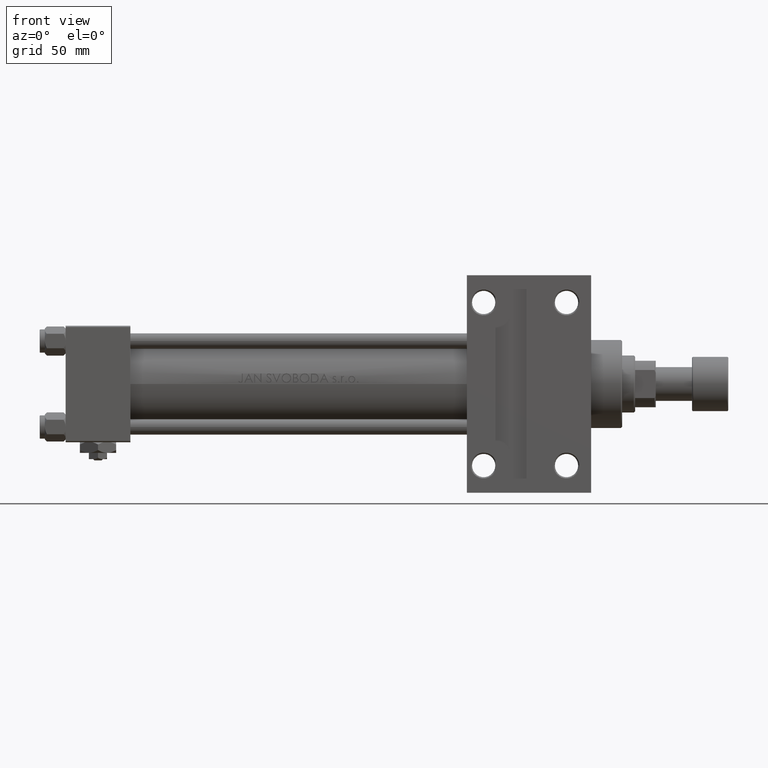
[diagram: clean part render]
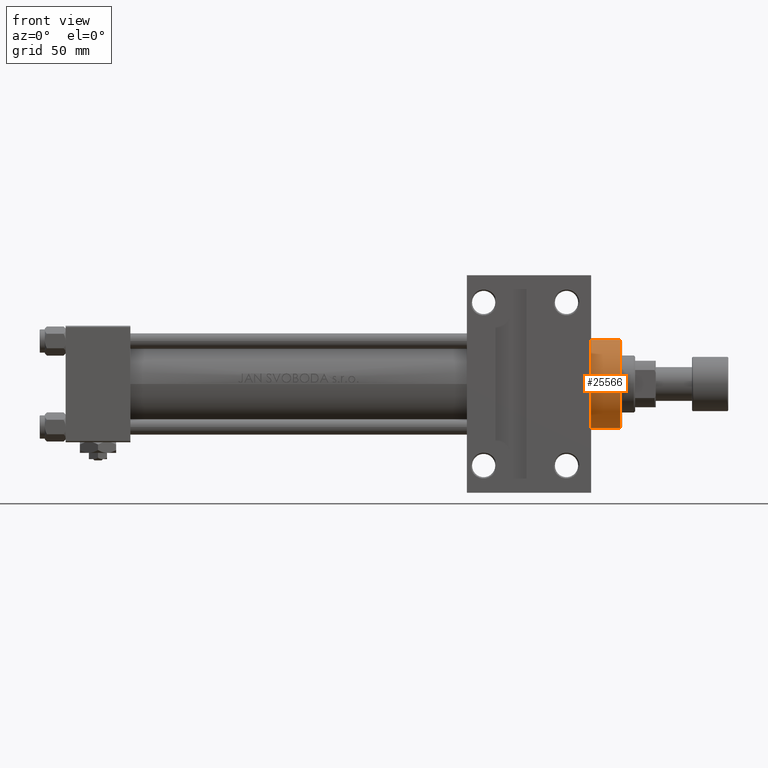
[diagram: same view with one face highlighted and labeled with its STEP entity id]
A machine part, front view. The second image highlights one B-rep face of the part: STEP entity #25566.
In plain terms, the highlighted cylindrical surface (partial cylindrical patch) has radius 17 mm, axis along (-1, 0, 0).
Its self-contained STEP definition (entity closure, byte-faithful):
#260 = ORIENTED_EDGE ( 'NONE', *, *, #46095, .T. ) ;
#1856 = CYLINDRICAL_SURFACE ( 'NONE', #39030, 17.00000000000000000 ) ;
#4994 = DIRECTION ( 'NONE',  ( 1.000000000000000000, 0.000000000000000000, 0.000000000000000000 ) ) ;
#5833 = LINE ( 'NONE', #9383, #42496 ) ;
#5946 = CARTESIAN_POINT ( 'NONE',  ( -17.00000000000000000, 0.000000000000000000, 40.19999999999999574 ) ) ;
#9383 = CARTESIAN_POINT ( 'NONE',  ( 17.00000000000000000, 2.081899558550500280E-15, 40.70000000000000284 ) ) ;
#9766 = CIRCLE ( 'NONE', #36272, 17.00000000000000000 ) ;
#12406 = AXIS2_PLACEMENT_3D ( 'NONE', #41344, #34534, #49623 ) ;
#12562 = LINE ( 'NONE', #43262, #30328 ) ;
#18963 = EDGE_CURVE ( 'NONE', #49261, #25878, #12562, .T. ) ;
#20991 = FACE_OUTER_BOUND ( 'NONE', #24687, .T. ) ;
#22040 = ORIENTED_EDGE ( 'NONE', *, *, #36124, .T. ) ;
#23833 = ORIENTED_EDGE ( 'NONE', *, *, #18963, .F. ) ;
#24687 = EDGE_LOOP ( 'NONE', ( #260, #22040, #27624, #23833 ) ) ;
#25566 = ADVANCED_FACE ( 'NONE', ( #20991 ), #1856, .T. ) ;
#25878 = VERTEX_POINT ( 'NONE', #27248 ) ;
#27120 = VERTEX_POINT ( 'NONE', #48296 ) ;
#27248 = CARTESIAN_POINT ( 'NONE',  ( -17.00000000000000000, 0.000000000000000000, 28.69999999999999929 ) ) ;
#27624 = ORIENTED_EDGE ( 'NONE', *, *, #45559, .T. ) ;
#30106 = CIRCLE ( 'NONE', #12406, 17.00000000000000000 ) ;
#30328 = VECTOR ( 'NONE', #39745, 1000.000000000000000 ) ;
#30904 = DIRECTION ( 'NONE',  ( -0.000000000000000000, -0.000000000000000000, -1.000000000000000000 ) ) ;
#33579 = CARTESIAN_POINT ( 'NONE',  ( 17.00000000000000000, 2.081899558550500280E-15, 28.69999999999999929 ) ) ;
#34534 = DIRECTION ( 'NONE',  ( 0.000000000000000000, 0.000000000000000000, -1.000000000000000000 ) ) ;
#35753 = VERTEX_POINT ( 'NONE', #33579 ) ;
#36124 = EDGE_CURVE ( 'NONE', #27120, #35753, #5833, .T. ) ;
#36272 = AXIS2_PLACEMENT_3D ( 'NONE', #46763, #43254, #4994 ) ;
#38458 = CARTESIAN_POINT ( 'NONE',  ( 0.000000000000000000, 0.000000000000000000, 40.70000000000000284 ) ) ;
#39030 = AXIS2_PLACEMENT_3D ( 'NONE', #38458, #30904, #39636 ) ;
#39636 = DIRECTION ( 'NONE',  ( -1.000000000000000000, 0.000000000000000000, 0.000000000000000000 ) ) ;
#39745 = DIRECTION ( 'NONE',  ( -0.000000000000000000, -0.000000000000000000, -1.000000000000000000 ) ) ;
#41344 = CARTESIAN_POINT ( 'NONE',  ( 0.000000000000000000, 0.000000000000000000, 40.19999999999999574 ) ) ;
#42496 = VECTOR ( 'NONE', #48354, 1000.000000000000000 ) ;
#43254 = DIRECTION ( 'NONE',  ( 0.000000000000000000, 0.000000000000000000, 1.000000000000000000 ) ) ;
#43262 = CARTESIAN_POINT ( 'NONE',  ( -17.00000000000000000, 0.000000000000000000, 40.70000000000000284 ) ) ;
#45559 = EDGE_CURVE ( 'NONE', #35753, #25878, #9766, .T. ) ;
#46095 = EDGE_CURVE ( 'NONE', #49261, #27120, #30106, .T. ) ;
#46763 = CARTESIAN_POINT ( 'NONE',  ( 0.000000000000000000, 0.000000000000000000, 28.69999999999999929 ) ) ;
#48296 = CARTESIAN_POINT ( 'NONE',  ( 17.00000000000000000, 2.081899558550500280E-15, 40.19999999999999574 ) ) ;
#48354 = DIRECTION ( 'NONE',  ( -0.000000000000000000, -0.000000000000000000, -1.000000000000000000 ) ) ;
#49261 = VERTEX_POINT ( 'NONE', #5946 ) ;
#49623 = DIRECTION ( 'NONE',  ( 1.000000000000000000, 0.000000000000000000, 0.000000000000000000 ) ) ;